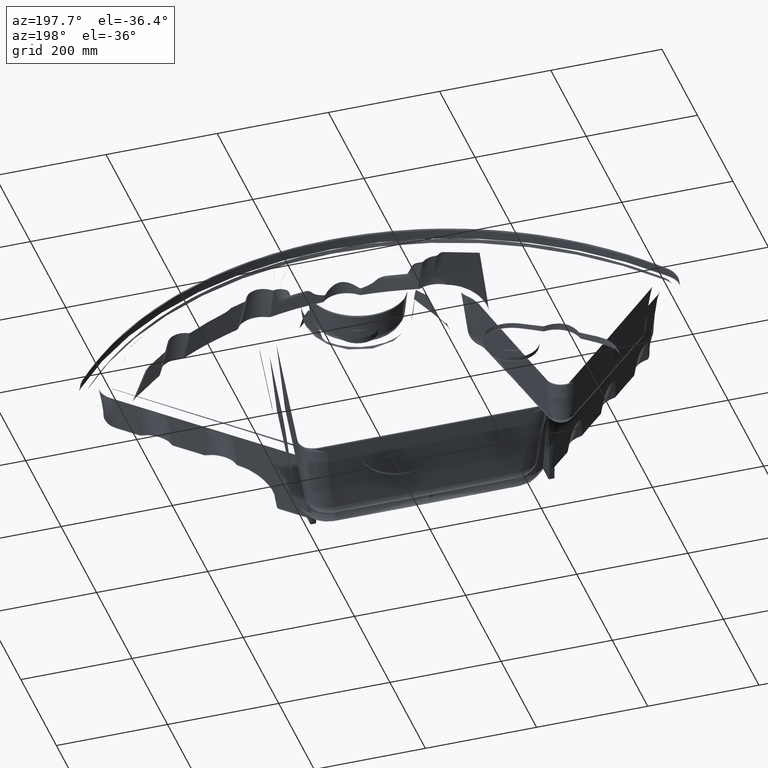
[diagram: clean part render]
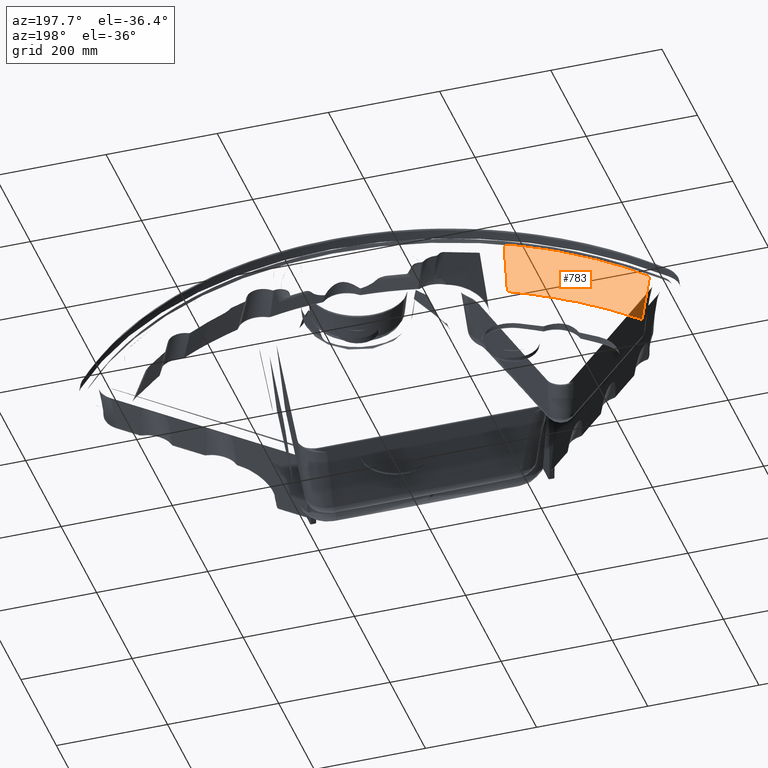
[diagram: same view with one face highlighted and labeled with its STEP entity id]
A machine part, auxiliary view. The second image highlights one B-rep face of the part: STEP entity #783.
In plain terms, the highlighted face is a freeform B-spline surface patch.
Its self-contained STEP definition (entity closure, byte-faithful):
#98=B_SPLINE_SURFACE_WITH_KNOTS('',3,3,((#9695,#9696,#9697,#9698,#9699,#9700,
#9701),(#9702,#9703,#9704,#9705,#9706,#9707,#9708),(#9709,#9710,#9711,#9712,
#9713,#9714,#9715),(#9716,#9717,#9718,#9719,#9720,#9721,#9722)),.UNSPECIFIED.,
 .F.,.F.,.F.,(4,4),(4,3,4),(0.,1.),(0.,0.5,1.),.UNSPECIFIED.);
#783=ADVANCED_FACE('',(#1357),#98,.T.);
#1357=FACE_OUTER_BOUND('',#1875,.T.);
#1875=EDGE_LOOP('',(#2551,#2552,#2553,#2554));
#2551=ORIENTED_EDGE('',*,*,#6027,.T.);
#2552=ORIENTED_EDGE('',*,*,#6019,.T.);
#2553=ORIENTED_EDGE('',*,*,#6028,.T.);
#2554=ORIENTED_EDGE('',*,*,#6029,.F.);
#5065=VERTEX_POINT('',#9573);
#5066=VERTEX_POINT('',#9580);
#5072=VERTEX_POINT('',#9683);
#5073=VERTEX_POINT('',#9688);
#6019=EDGE_CURVE('',#5066,#5065,#7478,.T.);
#6027=EDGE_CURVE('',#5072,#5066,#7486,.T.);
#6028=EDGE_CURVE('',#5065,#5073,#7487,.T.);
#6029=EDGE_CURVE('',#5072,#5073,#7488,.T.);
#7478=B_SPLINE_CURVE_WITH_KNOTS('',3,(#9574,#9575,#9576,#9577,#9578,#9579),
 .UNSPECIFIED.,.F.,.F.,(4,2,4),(0.,0.5,1.),.UNSPECIFIED.);
#7486=B_SPLINE_CURVE_WITH_KNOTS('',3,(#9679,#9680,#9681,#9682),.UNSPECIFIED.,
 .F.,.F.,(4,4),(0.,1.),.UNSPECIFIED.);
#7487=B_SPLINE_CURVE_WITH_KNOTS('',3,(#9684,#9685,#9686,#9687),.UNSPECIFIED.,
 .F.,.F.,(4,4),(0.,1.),.UNSPECIFIED.);
#7488=B_SPLINE_CURVE_WITH_KNOTS('',3,(#9689,#9690,#9691,#9692,#9693,#9694),
 .UNSPECIFIED.,.F.,.F.,(4,2,4),(0.,0.5,1.),.UNSPECIFIED.);
#9573=CARTESIAN_POINT('',(-494.036498220706,111.199663113319,-13.4171389621679));
#9574=CARTESIAN_POINT('',(-283.262966736519,271.173358514757,-9.6760530162548));
#9575=CARTESIAN_POINT('',(-321.260567201912,252.993524421589,-10.1012648267693));
#9576=CARTESIAN_POINT('',(-358.547941494228,230.646604716956,-10.6256315285404));
#9577=CARTESIAN_POINT('',(-429.576446264119,177.321353714427,-11.8726516996287));
#9578=CARTESIAN_POINT('',(-463.298839597596,146.344435721047,-12.5953236581216));
#9579=CARTESIAN_POINT('',(-494.03649786278,111.199662963428,-13.4171400107049));
#9580=CARTESIAN_POINT('',(-283.259885254335,271.174833233558,-9.67601747560341));
#9679=CARTESIAN_POINT('',(-285.654435834987,259.177283045588,-102.492667158069));
#9680=CARTESIAN_POINT('',(-284.871713134765,263.156943693776,-71.7893674199808));
#9681=CARTESIAN_POINT('',(-284.074582204571,267.155663049563,-40.850496014379));
#9682=CARTESIAN_POINT('',(-283.262966736507,271.173358514815,-9.67605301580269));
#9683=CARTESIAN_POINT('',(-285.654435836494,259.177283037926,-102.49266721718));
#9684=CARTESIAN_POINT('',(-494.036497862834,111.199662963425,-13.4171400103402));
#9685=CARTESIAN_POINT('',(-489.603112326204,111.480093069568,-43.3560849973419));
#9686=CARTESIAN_POINT('',(-485.188561451933,111.744333139096,-73.0479276590523));
#9687=CARTESIAN_POINT('',(-480.792936148344,111.992452201169,-102.492667841245));
#9688=CARTESIAN_POINT('',(-480.792936148344,111.992452201169,-102.492667841245));
#9689=CARTESIAN_POINT('',(-285.654435838001,259.177283030264,-102.492667276291));
#9690=CARTESIAN_POINT('',(-322.440702373035,241.110412292147,-102.492675253927));
#9691=CARTESIAN_POINT('',(-357.507198378651,219.548969980924,-102.492668011615));
#9692=CARTESIAN_POINT('',(-422.947104541065,170.191217567529,-102.492664948024));
#9693=CARTESIAN_POINT('',(-453.313415314343,142.398150465168,-102.492677747811));
#9694=CARTESIAN_POINT('',(-480.792936148344,111.992452201169,-102.492667841245));
#9695=CARTESIAN_POINT('',(-495.429599287389,110.294533438415,-9.11915333303919));
#9696=CARTESIAN_POINT('',(-465.852393362352,144.152638702278,-9.11915276171628));
#9697=CARTESIAN_POINT('',(-432.801100223513,174.962753903023,-9.11915295595707));
#9698=CARTESIAN_POINT('',(-396.950385117528,202.090615364971,-9.11915333149537));
#9699=CARTESIAN_POINT('',(-361.099670011543,229.218476826919,-9.11915370703366));
#9700=CARTESIAN_POINT('',(-322.466494156888,252.651800460285,-9.11915199494331));
#9701=CARTESIAN_POINT('',(-281.84394249437,271.913130733572,-9.11915334543864));
#9702=CARTESIAN_POINT('',(-492.965930197109,108.142359868443,-40.2436577081));
#9703=CARTESIAN_POINT('',(-463.536144962053,141.831709386629,-40.2436571367804));
#9704=CARTESIAN_POINT('',(-430.648319033564,172.489427974808,-40.2436573310197));
#9705=CARTESIAN_POINT('',(-394.976443449403,199.481962315954,-40.2436577065562));
#9706=CARTESIAN_POINT('',(-359.304567865243,226.474496657101,-40.2436580820927));
#9707=CARTESIAN_POINT('',(-320.862467090483,249.791938144826,-40.2436563700121));
#9708=CARTESIAN_POINT('',(-280.442399698135,268.957256170642,-40.2436577204994));
#9709=CARTESIAN_POINT('',(-490.502261111194,105.990186293475,-71.3681620831608));
#9710=CARTESIAN_POINT('',(-461.219896111699,139.510780586873,-71.368161511845));
#9711=CARTESIAN_POINT('',(-428.495538371058,170.016101647858,-71.3681617060826));
#9712=CARTESIAN_POINT('',(-393.002501777827,196.873309269549,-71.368162081617));
#9713=CARTESIAN_POINT('',(-357.509465184596,223.730516891241,-71.3681624571515));
#9714=CARTESIAN_POINT('',(-319.258440651057,246.932075533283,-71.3681607450819));
#9715=CARTESIAN_POINT('',(-279.040856887729,266.001381614432,-71.3681620955601));
#9716=CARTESIAN_POINT('',(-488.03859202985,103.838012713274,-102.492666458222));
#9717=CARTESIAN_POINT('',(-458.903646789998,137.189852327415,-102.49266588691));
#9718=CARTESIAN_POINT('',(-426.342758260969,167.542774903294,-102.492666081146));
#9719=CARTESIAN_POINT('',(-391.028560102636,194.26465622588,-102.492666456678));
#9720=CARTESIAN_POINT('',(-355.714361944304,220.986537548466,-102.49266683221));
#9721=CARTESIAN_POINT('',(-317.654414868278,244.072212611648,-102.492665120153));
#9722=CARTESIAN_POINT('',(-277.639314062479,263.045507065259,-102.492666470621));